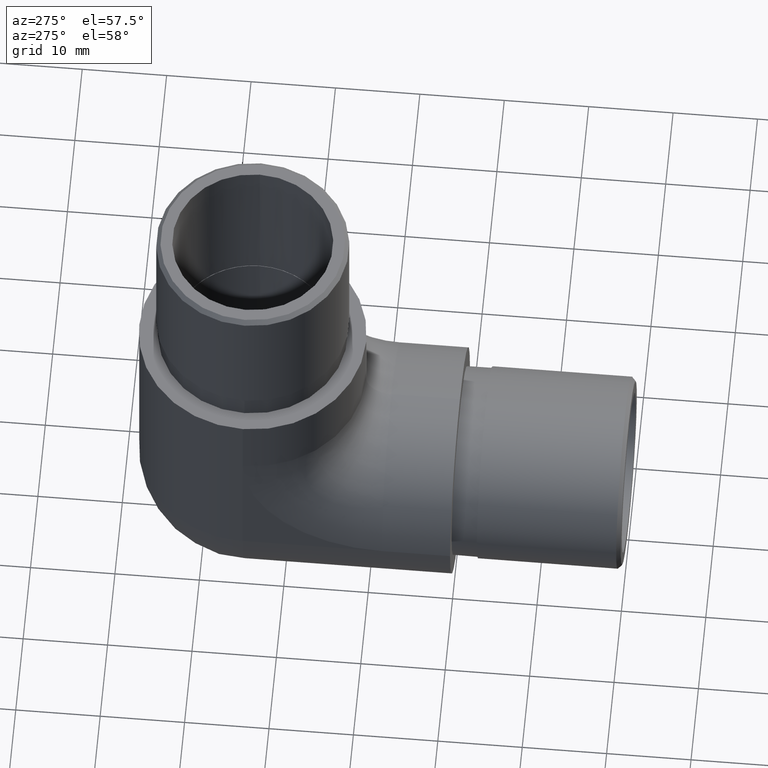
[diagram: clean part render]
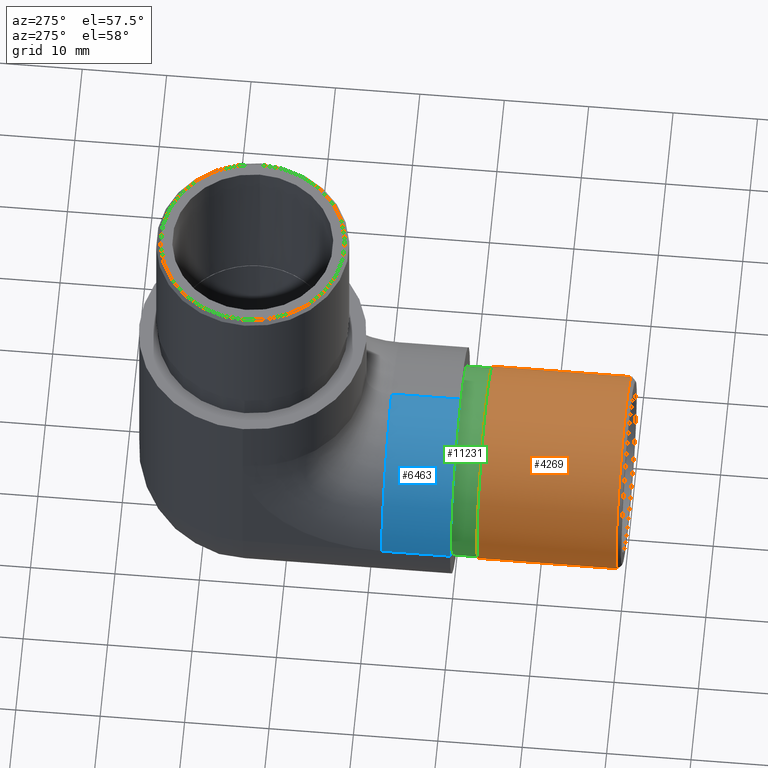
[diagram: same view with three faces highlighted in distinct colors, each labeled with its STEP entity id]
A machine part, auxiliary view with three faces highlighted in distinct colors.
Their STEP definitions:

[orange] entity #4269 — the highlighted cylindrical surface (bore or boss wall) has radius 11.4 mm, axis along (-0, 1, 0).
#621 = DIRECTION ( 'NONE',  ( 1.000000000000000000, 0.0000000000000000000, 0.0000000000000000000 ) ) ;
#637 = AXIS2_PLACEMENT_3D ( 'NONE', #11465, #6714, #4691 ) ;
#755 = CARTESIAN_POINT ( 'NONE',  ( 2.618207179355330000E-015, -19.99999999999999300, -1.101896351940467700E-014 ) ) ;
#1218 = CIRCLE ( 'NONE', #637, 11.40000000000000000 ) ;
#2247 = FACE_OUTER_BOUND ( 'NONE', #2508, .T. ) ;
#2508 = EDGE_LOOP ( 'NONE', ( #7118 ) ) ;
#2627 = EDGE_CURVE ( 'NONE', #7760, #7760, #1218, .T. ) ;
#3149 = CYLINDRICAL_SURFACE ( 'NONE', #6831, 11.40000000000000000 ) ;
#4022 = ORIENTED_EDGE ( 'NONE', *, *, #6350, .F. ) ;
#4269 = ADVANCED_FACE ( 'NONE', ( #2247, #8916 ), #3149, .T. ) ;
#4691 = DIRECTION ( 'NONE',  ( 0.0000000000000000000, 3.043374519257556000E-016, -1.000000000000000000 ) ) ;
#4915 = CARTESIAN_POINT ( 'NONE',  ( 2.618207179355330000E-015, -19.49999999999997500, -11.40000000000001100 ) ) ;
#5389 = CARTESIAN_POINT ( 'NONE',  ( 2.618207179355330000E-015, -2.999999999999992500, -3.469446951953614200E-015 ) ) ;
#5549 = CIRCLE ( 'NONE', #6934, 11.40000000000000000 ) ;
#6350 = EDGE_CURVE ( 'NONE', #7471, #7471, #5549, .T. ) ;
#6714 = DIRECTION ( 'NONE',  ( -0.0000000000000000000, 1.000000000000000000, 4.440892098500626200E-016 ) ) ;
#6831 = AXIS2_PLACEMENT_3D ( 'NONE', #755, #7542, #10397 ) ;
#6934 = AXIS2_PLACEMENT_3D ( 'NONE', #5389, #12236, #621 ) ;
#7118 = ORIENTED_EDGE ( 'NONE', *, *, #2627, .T. ) ;
#7471 = VERTEX_POINT ( 'NONE', #12532 ) ;
#7542 = DIRECTION ( 'NONE',  ( -0.0000000000000000000, 1.000000000000000000, 4.440892098500625200E-016 ) ) ;
#7760 = VERTEX_POINT ( 'NONE', #4915 ) ;
#8850 = EDGE_LOOP ( 'NONE', ( #4022 ) ) ;
#8916 = FACE_OUTER_BOUND ( 'NONE', #8850, .T. ) ;
#10397 = DIRECTION ( 'NONE',  ( 0.0000000000000000000, -3.043374519257556000E-016, 1.000000000000000000 ) ) ;
#11465 = CARTESIAN_POINT ( 'NONE',  ( 2.618207179355330000E-015, -19.49999999999997900, -1.079691891447963900E-014 ) ) ;
#12236 = DIRECTION ( 'NONE',  ( -0.0000000000000000000, 1.000000000000000000, 4.440892098500625200E-016 ) ) ;
#12532 = CARTESIAN_POINT ( 'NONE',  ( 11.40000000000000400, -2.999999999999992500, -3.469446951953614200E-015 ) ) ;

[blue] entity #6463 — the highlighted cylindrical surface (partial cylindrical patch) has radius 13.45 mm, axis along (0, -1, 0).
#287 = CARTESIAN_POINT ( 'NONE',  ( -13.44999999999999900, 8.099999999999999600, -8.673617379884032500E-016 ) ) ;
#533 = VERTEX_POINT ( 'NONE', #2384 ) ;
#576 = ORIENTED_EDGE ( 'NONE', *, *, #2059, .T. ) ;
#592 = CARTESIAN_POINT ( 'NONE',  ( -1.734723475976807100E-015, 0.0000000000000000000, 13.44999999999999900 ) ) ;
#669 = VECTOR ( 'NONE', #7417, 1000.000000000000000 ) ;
#934 = AXIS2_PLACEMENT_3D ( 'NONE', #3182, #4160, #6189 ) ;
#978 = EDGE_CURVE ( 'NONE', #12492, #8407, #6534, .T. ) ;
#1383 = DIRECTION ( 'NONE',  ( 0.0000000000000000000, 0.0000000000000000000, -1.000000000000000000 ) ) ;
#1593 = EDGE_LOOP ( 'NONE', ( #1708, #4580, #4575, #576 ) ) ;
#1708 = ORIENTED_EDGE ( 'NONE', *, *, #10470, .T. ) ;
#1860 = CARTESIAN_POINT ( 'NONE',  ( -13.44999999999999900, 0.0000000000000000000, -3.469446951953614200E-015 ) ) ;
#2059 = EDGE_CURVE ( 'NONE', #533, #7348, #2866, .T. ) ;
#2230 = FACE_OUTER_BOUND ( 'NONE', #1593, .T. ) ;
#2384 = CARTESIAN_POINT ( 'NONE',  ( -8.673617379884035500E-016, 8.099999999999999600, 13.44999999999999900 ) ) ;
#2866 = CIRCLE ( 'NONE', #11009, 13.44999999999999900 ) ;
#3182 = CARTESIAN_POINT ( 'NONE',  ( 1.734723475976807100E-015, 0.0000000000000000000, -1.734723475976807100E-015 ) ) ;
#4160 = DIRECTION ( 'NONE',  ( -0.0000000000000000000, -1.000000000000000000, -0.0000000000000000000 ) ) ;
#4575 = ORIENTED_EDGE ( 'NONE', *, *, #9928, .F. ) ;
#4580 = ORIENTED_EDGE ( 'NONE', *, *, #978, .F. ) ;
#4771 = DIRECTION ( 'NONE',  ( 0.0000000000000000000, -1.000000000000000000, 0.0000000000000000000 ) ) ;
#5594 = DIRECTION ( 'NONE',  ( 0.0000000000000000000, 0.0000000000000000000, -1.000000000000000000 ) ) ;
#5745 = CARTESIAN_POINT ( 'NONE',  ( 1.734723475976807100E-015, 38.00000000000000000, -1.734723475976807100E-015 ) ) ;
#5847 = LINE ( 'NONE', #7914, #10388 ) ;
#6103 = DIRECTION ( 'NONE',  ( 0.0000000000000000000, -1.000000000000000000, 0.0000000000000000000 ) ) ;
#6189 = DIRECTION ( 'NONE',  ( 0.0000000000000000000, 0.0000000000000000000, 1.000000000000000000 ) ) ;
#6463 = ADVANCED_FACE ( 'NONE', ( #2230 ), #10399, .T. ) ;
#6534 = CIRCLE ( 'NONE', #934, 13.44999999999999900 ) ;
#7340 = AXIS2_PLACEMENT_3D ( 'NONE', #5745, #4771, #5594 ) ;
#7348 = VERTEX_POINT ( 'NONE', #287 ) ;
#7417 = DIRECTION ( 'NONE',  ( 0.0000000000000000000, -1.000000000000000000, 0.0000000000000000000 ) ) ;
#7914 = CARTESIAN_POINT ( 'NONE',  ( 1.734723475976807100E-015, 38.00000000000000000, 13.44999999999999900 ) ) ;
#8161 = CARTESIAN_POINT ( 'NONE',  ( 1.734723475976807100E-015, 8.099999999999999600, -1.734723475976807100E-015 ) ) ;
#8407 = VERTEX_POINT ( 'NONE', #1860 ) ;
#9738 = LINE ( 'NONE', #12114, #669 ) ;
#9928 = EDGE_CURVE ( 'NONE', #533, #12492, #5847, .T. ) ;
#10388 = VECTOR ( 'NONE', #10832, 1000.000000000000000 ) ;
#10399 = CYLINDRICAL_SURFACE ( 'NONE', #7340, 13.44999999999999900 ) ;
#10470 = EDGE_CURVE ( 'NONE', #7348, #8407, #9738, .T. ) ;
#10832 = DIRECTION ( 'NONE',  ( 0.0000000000000000000, -1.000000000000000000, 0.0000000000000000000 ) ) ;
#11009 = AXIS2_PLACEMENT_3D ( 'NONE', #8161, #6103, #1383 ) ;
#12114 = CARTESIAN_POINT ( 'NONE',  ( -13.44999999999999900, 0.0000000000000000000, -8.673617379884032500E-016 ) ) ;
#12492 = VERTEX_POINT ( 'NONE', #592 ) ;

[green] entity #11231 — the highlighted cylindrical surface (bore or boss wall) has radius 11.2 mm, axis along (-0, 1, 0).
#369 = AXIS2_PLACEMENT_3D ( 'NONE', #3384, #10030, #1331 ) ;
#1193 = EDGE_CURVE ( 'NONE', #2439, #2439, #4084, .T. ) ;
#1267 = CARTESIAN_POINT ( 'NONE',  ( 2.618207179355330000E-015, -2.999999999999993300, -1.332267629550187500E-015 ) ) ;
#1331 = DIRECTION ( 'NONE',  ( 1.000000000000000000, 0.0000000000000000000, 0.0000000000000000000 ) ) ;
#1460 = ORIENTED_EDGE ( 'NONE', *, *, #8651, .T. ) ;
#2439 = VERTEX_POINT ( 'NONE', #4571 ) ;
#2802 = EDGE_LOOP ( 'NONE', ( #1460 ) ) ;
#3077 = DIRECTION ( 'NONE',  ( -0.0000000000000000000, 1.000000000000000000, 4.440892098500624700E-016 ) ) ;
#3186 = AXIS2_PLACEMENT_3D ( 'NONE', #8251, #10149, #10239 ) ;
#3384 = CARTESIAN_POINT ( 'NONE',  ( 2.618207179355330000E-015, 6.938893903907228400E-015, 0.0000000000000000000 ) ) ;
#3854 = AXIS2_PLACEMENT_3D ( 'NONE', #1267, #3077, #6035 ) ;
#4084 = CIRCLE ( 'NONE', #369, 11.19999999999999900 ) ;
#4571 = CARTESIAN_POINT ( 'NONE',  ( 11.20000000000000300, 6.938893903907228400E-015, 0.0000000000000000000 ) ) ;
#5793 = EDGE_LOOP ( 'NONE', ( #10841 ) ) ;
#6035 = DIRECTION ( 'NONE',  ( 0.0000000000000000000, -4.259365677621624900E-016, 1.000000000000000000 ) ) ;
#6217 = VERTEX_POINT ( 'NONE', #11714 ) ;
#7773 = CYLINDRICAL_SURFACE ( 'NONE', #3854, 11.19999999999999900 ) ;
#7926 = FACE_OUTER_BOUND ( 'NONE', #5793, .T. ) ;
#8069 = FACE_OUTER_BOUND ( 'NONE', #2802, .T. ) ;
#8251 = CARTESIAN_POINT ( 'NONE',  ( 2.618207179355330000E-015, -2.999999999999992500, -1.332267629550187100E-015 ) ) ;
#8651 = EDGE_CURVE ( 'NONE', #6217, #6217, #9465, .T. ) ;
#9465 = CIRCLE ( 'NONE', #3186, 11.19999999999999900 ) ;
#10030 = DIRECTION ( 'NONE',  ( -0.0000000000000000000, 1.000000000000000000, 4.440892098500625200E-016 ) ) ;
#10149 = DIRECTION ( 'NONE',  ( -0.0000000000000000000, 1.000000000000000000, 4.440892098500625200E-016 ) ) ;
#10239 = DIRECTION ( 'NONE',  ( 0.0000000000000000000, 4.259365677621624900E-016, -1.000000000000000000 ) ) ;
#10841 = ORIENTED_EDGE ( 'NONE', *, *, #1193, .F. ) ;
#11231 = ADVANCED_FACE ( 'NONE', ( #8069, #7926 ), #7773, .T. ) ;
#11714 = CARTESIAN_POINT ( 'NONE',  ( 2.618207179355330000E-015, -2.999999999999987600, -11.20000000000000100 ) ) ;